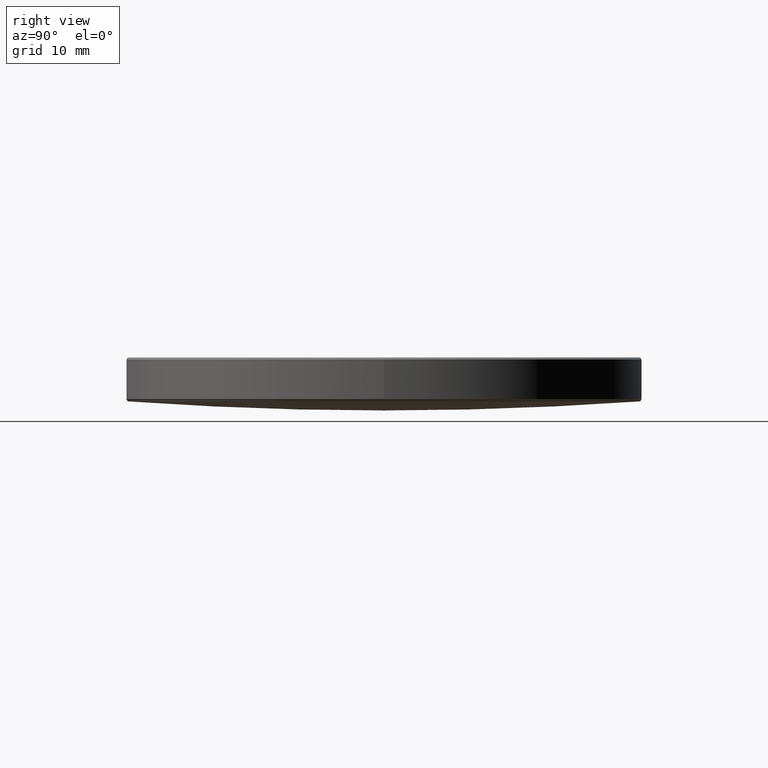
[diagram: clean part render]
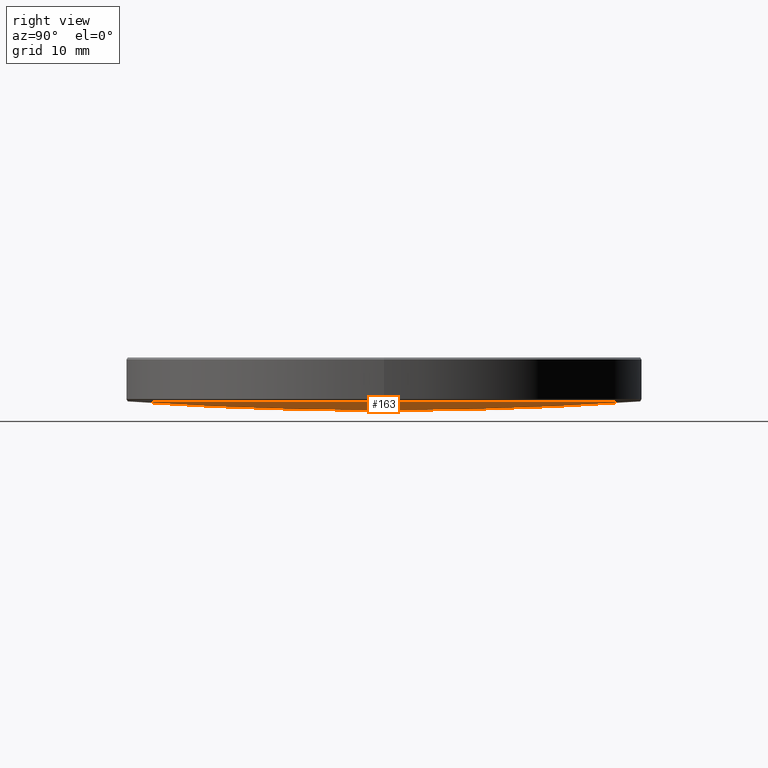
[diagram: same view with one face highlighted and labeled with its STEP entity id]
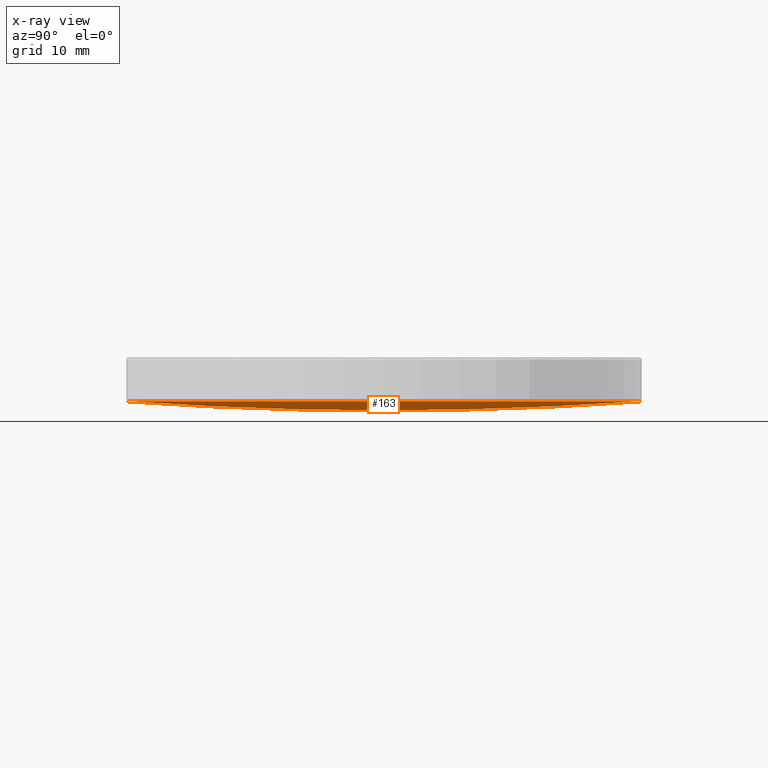
[diagram: x-ray of the same camera — body ghosted, the highlighted face saturated]
A machine part, right view. The second image highlights one B-rep face of the part: STEP entity #163.
The next image is the same camera in x-ray: the body ghosted, the highlighted face saturated — about 0% of this face is hidden behind the body in this view.
In plain terms, the highlighted spherical surface has radius 356.69 mm.
Its self-contained STEP definition (entity closure, byte-faithful):
#4 = ORIENTED_EDGE ( 'NONE', *, *, #16, .F. ) ;
#7 = ORIENTED_EDGE ( 'NONE', *, *, #188, .T. ) ;
#16 = EDGE_CURVE ( 'NONE', #221, #120, #324, .T. ) ;
#46 = VERTEX_POINT ( 'NONE', #242 ) ;
#55 = AXIS2_PLACEMENT_3D ( 'NONE', #305, #76, #178 ) ;
#73 = DIRECTION ( 'NONE',  ( -1.000000000000000000, 1.224646799147353207E-16, 0.000000000000000000 ) ) ;
#76 = DIRECTION ( 'NONE',  ( 0.000000000000000000, 0.000000000000000000, -1.000000000000000000 ) ) ;
#84 = DIRECTION ( 'NONE',  ( 0.000000000000000000, 1.000000000000000000, 0.000000000000000000 ) ) ;
#92 = ORIENTED_EDGE ( 'NONE', *, *, #247, .T. ) ;
#104 = DIRECTION ( 'NONE',  ( 0.000000000000000000, 0.000000000000000000, -1.000000000000000000 ) ) ;
#112 = VERTEX_POINT ( 'NONE', #149 ) ;
#120 = VERTEX_POINT ( 'NONE', #301 ) ;
#124 = CIRCLE ( 'NONE', #168, 25.20055964190958520 ) ;
#149 = CARTESIAN_POINT ( 'NONE',  ( 0.000000000000000000, 25.20055964190926545, 12.98581782909005788 ) ) ;
#151 = EDGE_CURVE ( 'NONE', #112, #46, #124, .T. ) ;
#160 = SPHERICAL_SURFACE ( 'NONE', #230, 356.6899999999999977 ) ;
#163 = ADVANCED_FACE ( 'NONE', ( #282 ), #160, .T. ) ;
#168 = AXIS2_PLACEMENT_3D ( 'NONE', #210, #229, #311 ) ;
#176 = CARTESIAN_POINT ( 'NONE',  ( 0.000000000000000000, 0.000000000000000000, 368.7844798469995453 ) ) ;
#178 = DIRECTION ( 'NONE',  ( 1.000000000000000000, 0.000000000000000000, 0.000000000000000000 ) ) ;
#181 = AXIS2_PLACEMENT_3D ( 'NONE', #182, #73, #224 ) ;
#182 = CARTESIAN_POINT ( 'NONE',  ( 0.000000000000000000, 0.000000000000000000, 368.7844798469995453 ) ) ;
#183 = CARTESIAN_POINT ( 'NONE',  ( 0.000000000000000000, 0.000000000000000000, 368.7844798469995453 ) ) ;
#188 = EDGE_CURVE ( 'NONE', #221, #112, #253, .T. ) ;
#190 = ORIENTED_EDGE ( 'NONE', *, *, #151, .T. ) ;
#201 = CARTESIAN_POINT ( 'NONE',  ( 0.000000000000000000, 2.184096333939347168E-14, 12.09447984699951739 ) ) ;
#207 = CIRCLE ( 'NONE', #55, 25.20055964190958520 ) ;
#210 = CARTESIAN_POINT ( 'NONE',  ( 0.000000000000000000, 0.000000000000000000, 12.98581782909002946 ) ) ;
#221 = VERTEX_POINT ( 'NONE', #201 ) ;
#224 = DIRECTION ( 'NONE',  ( -1.224646799147353207E-16, -1.000000000000000000, 0.000000000000000000 ) ) ;
#229 = DIRECTION ( 'NONE',  ( 0.000000000000000000, 0.000000000000000000, -1.000000000000000000 ) ) ;
#230 = AXIS2_PLACEMENT_3D ( 'NONE', #176, #328, #84 ) ;
#235 = EDGE_LOOP ( 'NONE', ( #4, #7, #190, #92 ) ) ;
#242 = CARTESIAN_POINT ( 'NONE',  ( 25.20055964190958520, 0.000000000000000000, 12.98581782909002946 ) ) ;
#245 = DIRECTION ( 'NONE',  ( 1.000000000000000000, -0.000000000000000000, 0.000000000000000000 ) ) ;
#247 = EDGE_CURVE ( 'NONE', #46, #120, #207, .T. ) ;
#253 = CIRCLE ( 'NONE', #275, 356.6899999999999977 ) ;
#275 = AXIS2_PLACEMENT_3D ( 'NONE', #183, #245, #104 ) ;
#282 = FACE_OUTER_BOUND ( 'NONE', #235, .T. ) ;
#301 = CARTESIAN_POINT ( 'NONE',  ( -3.086178470218615315E-15, -25.20055964190926545, 12.98581782909005788 ) ) ;
#305 = CARTESIAN_POINT ( 'NONE',  ( 0.000000000000000000, 0.000000000000000000, 12.98581782909002946 ) ) ;
#311 = DIRECTION ( 'NONE',  ( 1.000000000000000000, 0.000000000000000000, 0.000000000000000000 ) ) ;
#324 = CIRCLE ( 'NONE', #181, 356.6899999999999977 ) ;
#328 = DIRECTION ( 'NONE',  ( -1.000000000000000000, 0.000000000000000000, 0.000000000000000000 ) ) ;